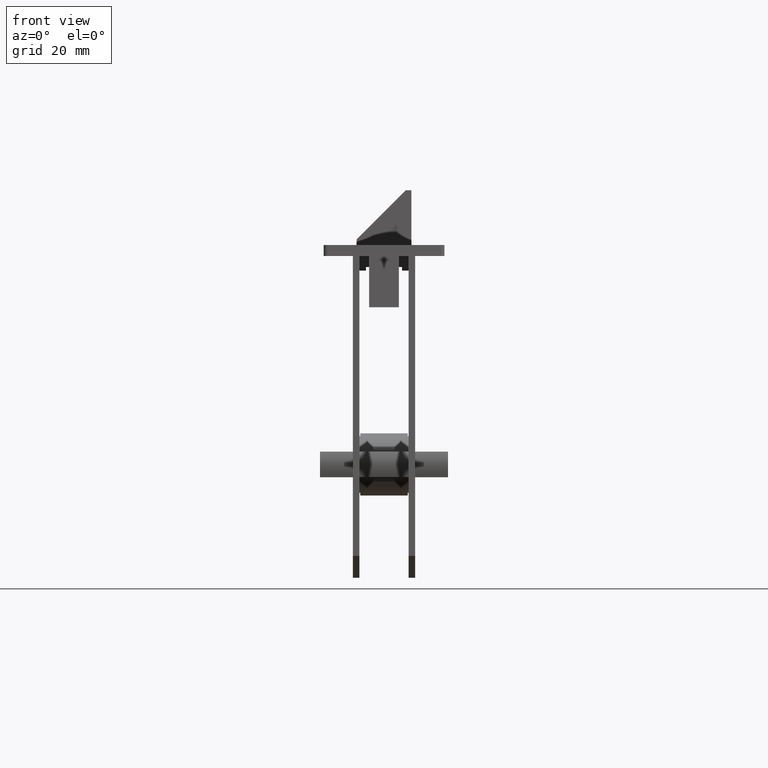
[diagram: clean part render]
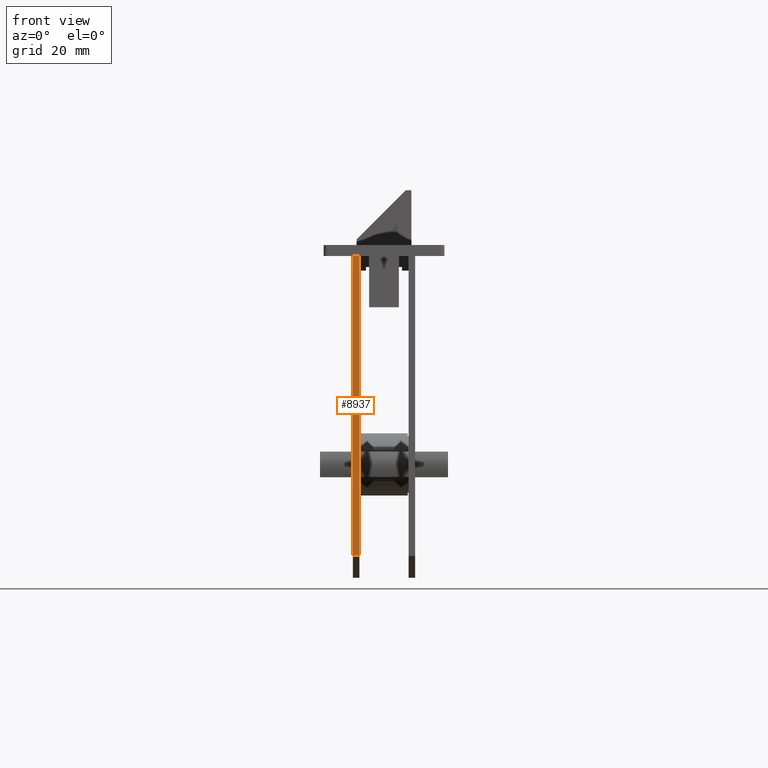
[diagram: same view with one face highlighted and labeled with its STEP entity id]
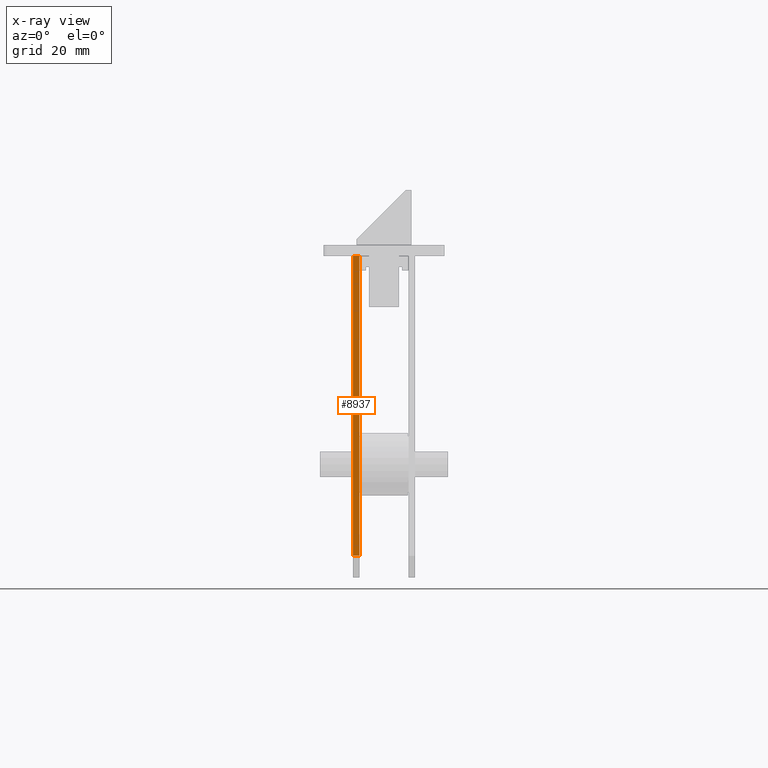
[diagram: x-ray of the same camera — body ghosted, the highlighted face saturated]
A machine part, front view. The second image highlights one B-rep face of the part: STEP entity #8937.
The next image is the same camera in x-ray: the body ghosted, the highlighted face saturated — about 0% of this face is hidden behind the body in this view.
In plain terms, the highlighted planar face has unit normal (0, 1, 0).
Its self-contained STEP definition (entity closure, byte-faithful):
#1070 = VERTEX_POINT ( 'NONE', #20062 ) ;
#1638 = EDGE_CURVE ( 'NONE', #1070, #3264, #9091, .T. ) ;
#2288 = ORIENTED_EDGE ( 'NONE', *, *, #11466, .T. ) ;
#2801 = ORIENTED_EDGE ( 'NONE', *, *, #15018, .F. ) ;
#2805 = EDGE_CURVE ( 'NONE', #8047, #1070, #11023, .T. ) ;
#3067 = DIRECTION ( 'NONE',  ( 1.000000000000000000, 0.000000000000000000, 0.000000000000000000 ) ) ;
#3264 = VERTEX_POINT ( 'NONE', #8469 ) ;
#6879 = CARTESIAN_POINT ( 'NONE',  ( -6.750000000000002665, -83.00000000000001421, -89.50000000000000000 ) ) ;
#7506 = CARTESIAN_POINT ( 'NONE',  ( -8.500000000000021316, -83.00000000000001421, -83.49999999999994316 ) ) ;
#7573 = AXIS2_PLACEMENT_3D ( 'NONE', #7654, #18466, #9221 ) ;
#7654 = CARTESIAN_POINT ( 'NONE',  ( -6.750000000000002665, -83.00000000000001421, -89.50000000000000000 ) ) ;
#8018 = CARTESIAN_POINT ( 'NONE',  ( -6.750000000000002665, -83.00000000000001421, -83.49999999999994316 ) ) ;
#8047 = VERTEX_POINT ( 'NONE', #8018 ) ;
#8469 = CARTESIAN_POINT ( 'NONE',  ( -8.500000000000021316, -83.00000000000001421, -1.500000000000000000 ) ) ;
#8712 = DIRECTION ( 'NONE',  ( -1.000000000000000000, 0.000000000000000000, 0.000000000000000000 ) ) ;
#8937 = ADVANCED_FACE ( 'NONE', ( #12987 ), #15520, .F. ) ;
#9091 = LINE ( 'NONE', #19343, #15649 ) ;
#9221 = DIRECTION ( 'NONE',  ( 0.000000000000000000, -0.000000000000000000, 1.000000000000000000 ) ) ;
#10070 = VERTEX_POINT ( 'NONE', #7506 ) ;
#11023 = LINE ( 'NONE', #6879, #11720 ) ;
#11145 = CARTESIAN_POINT ( 'NONE',  ( -8.500000000000021316, -83.00000000000001421, -89.50000000000000000 ) ) ;
#11466 = EDGE_CURVE ( 'NONE', #10070, #8047, #19827, .T. ) ;
#11650 = EDGE_LOOP ( 'NONE', ( #2801, #2288, #18174, #13835 ) ) ;
#11720 = VECTOR ( 'NONE', #17682, 1000.000000000000000 ) ;
#12679 = DIRECTION ( 'NONE',  ( -0.000000000000000000, -0.000000000000000000, 1.000000000000000000 ) ) ;
#12987 = FACE_OUTER_BOUND ( 'NONE', #11650, .T. ) ;
#13835 = ORIENTED_EDGE ( 'NONE', *, *, #1638, .T. ) ;
#15018 = EDGE_CURVE ( 'NONE', #10070, #3264, #17102, .T. ) ;
#15189 = VECTOR ( 'NONE', #12679, 1000.000000000000000 ) ;
#15353 = CARTESIAN_POINT ( 'NONE',  ( -6.750000000000002665, -83.00000000000001421, -83.49999999999994316 ) ) ;
#15520 = PLANE ( 'NONE',  #7573 ) ;
#15649 = VECTOR ( 'NONE', #8712, 1000.000000000000000 ) ;
#17102 = LINE ( 'NONE', #11145, #15189 ) ;
#17156 = VECTOR ( 'NONE', #3067, 1000.000000000000000 ) ;
#17682 = DIRECTION ( 'NONE',  ( -0.000000000000000000, -0.000000000000000000, 1.000000000000000000 ) ) ;
#18174 = ORIENTED_EDGE ( 'NONE', *, *, #2805, .T. ) ;
#18466 = DIRECTION ( 'NONE',  ( 0.000000000000000000, 1.000000000000000000, 0.000000000000000000 ) ) ;
#19343 = CARTESIAN_POINT ( 'NONE',  ( -6.750000000000002665, -83.00000000000001421, -1.500000000000000000 ) ) ;
#19827 = LINE ( 'NONE', #15353, #17156 ) ;
#20062 = CARTESIAN_POINT ( 'NONE',  ( -6.750000000000002665, -83.00000000000001421, -1.500000000000000000 ) ) ;